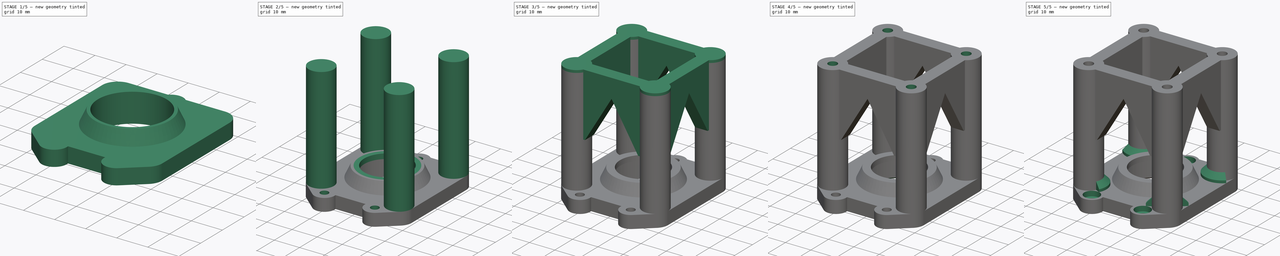
[diagram: build sequence overview — one tinted view per stage of 5, left to right]
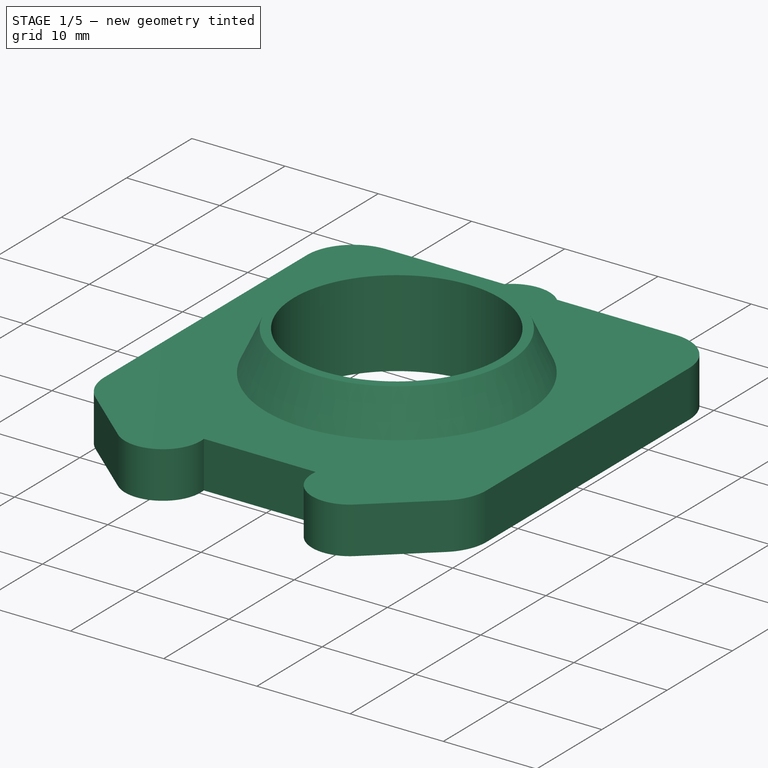
[diagram: stage 1 of 5 — iso view after this stage's code; geometry added in this stage tinted green]
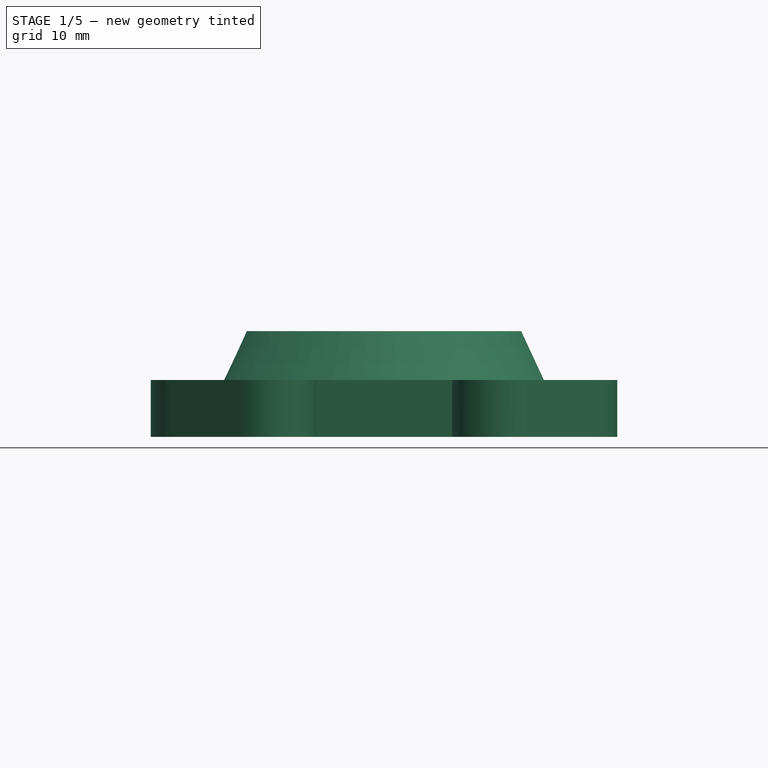
[diagram: stage 1 of 5 — front view after this stage's code; geometry added in this stage tinted green]
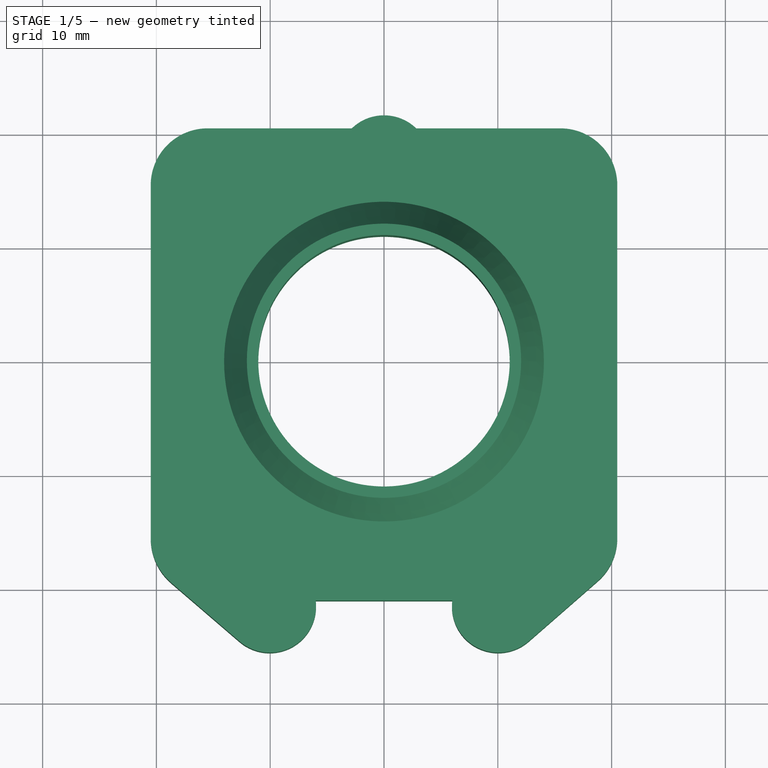
[diagram: stage 1 of 5 — top view after this stage's code; geometry added in this stage tinted green]
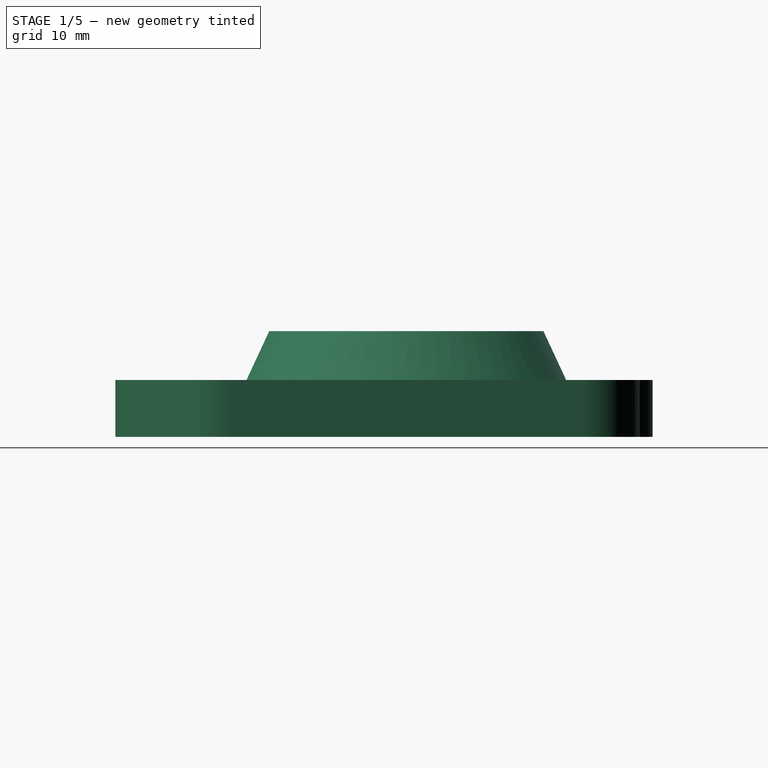
[diagram: stage 1 of 5 — right view after this stage's code; geometry added in this stage tinted green]
FCSTD DOCUMENT  (FreeCAD 0.17R13519 (Git))
Label: Halterung Lager und Schrittmotor Z-Achse
License: All rights reserved
LicenseURL: http://en.wikipedia.org/wiki/All_rights_reserved
objects: Sketcher::SketchObject×13, PartDesign::Pad×6, PartDesign::Pocket×6, PartDesign::Chamfer×2, PartDesign::Revolution×1, Part::MultiFuse×1
note: 42 computed .brp shape members not serialized (recipe doc carries the construction recipe); baked Part::Feature solids carry a one-line shape summary decoded from their .brp

FEATURE [Sketcher::SketchObject] Sketch
  MapMode = 5
  sketch-geometry (33):
    g0: LineSegment [constr] StartX=-15.5 StartY=15.5 StartZ=0 EndX=15.5 EndY=15.5 EndZ=0
    g1: LineSegment [constr] StartX=15.5 StartY=15.5 StartZ=0 EndX=15.5 EndY=-15.5 EndZ=0
    g2: LineSegment [constr] StartX=15.5 StartY=-15.5 StartZ=0 EndX=-15.5 EndY=-15.5 EndZ=0
    g3: LineSegment [constr] StartX=-15.5 StartY=-15.5 StartZ=0 EndX=-15.5 EndY=15.5 EndZ=0
    g4: ArcOfCircle CenterX=-15.5 CenterY=15.5 CenterZ=0 NormalX=0 NormalY=0 NormalZ=1 AngleXU=0 Radius=5 StartAngle=1.5708 EndAngle=3.14159
    g5: ArcOfCircle CenterX=15.5 CenterY=15.5 CenterZ=0 NormalX=0 NormalY=0 NormalZ=1 AngleXU=0 Radius=5 StartAngle=6.28319 EndAngle=7.85398
    g6: ArcOfCircle [constr] CenterX=15.5 CenterY=-15.5 CenterZ=0 NormalX=0 NormalY=0 NormalZ=1 AngleXU=0 Radius=5 StartAngle=4.71239 EndAngle=6.28319
    g7: ArcOfCircle [constr] CenterX=-15.5 CenterY=-15.5 CenterZ=0 NormalX=0 NormalY=0 NormalZ=1 AngleXU=0 Radius=5 StartAngle=3.14159 EndAngle=4.71239
    g8: LineSegment [constr] StartX=-15.5 StartY=20.5 StartZ=0 EndX=15.5 EndY=20.5 EndZ=0
    g9: LineSegment StartX=20.5 StartY=15.5 StartZ=0 EndX=20.5 EndY=-15.5 EndZ=0
    g10: LineSegment [constr] StartX=-15.5 StartY=-20.5 StartZ=0 EndX=15.5 EndY=-20.5 EndZ=0
    g11: LineSegment StartX=-20.5 StartY=-15.5 StartZ=0 EndX=-20.5 EndY=15.5 EndZ=0
    g12: LineSegment [constr] StartX=2.03516 StartY=14.05 StartZ=0 EndX=4.07032 EndY=17.575 EndZ=0
    g13: LineSegment [constr] StartX=4.07032 StartY=17.575 StartZ=0 EndX=2.03516 EndY=21.1 EndZ=0
    g14: LineSegment [constr] StartX=2.03516 StartY=21.1 StartZ=0 EndX=-2.03516 EndY=21.1 EndZ=0
    g15: LineSegment [constr] StartX=-2.03516 StartY=21.1 StartZ=0 EndX=-4.07032 EndY=17.575 EndZ=0
    g16: LineSegment [constr] StartX=-4.07032 StartY=17.575 StartZ=0 EndX=-2.03516 EndY=14.05 EndZ=0
    g17: LineSegment [constr] StartX=-2.03516 StartY=14.05 StartZ=0 EndX=2.03516 EndY=14.05 EndZ=0
    g18: Circle [constr] CenterX=0 CenterY=17.575 CenterZ=0 NormalX=0 NormalY=0 NormalZ=1 AngleXU=0 Radius=4.07032
    g19: Circle CenterX=0 CenterY=0 CenterZ=0 NormalX=0 NormalY=0 NormalZ=1 AngleXU=0 Radius=11.05
    g20: LineSegment [constr] StartX=0 StartY=14.05 StartZ=0 EndX=0 EndY=11.05 EndZ=0
    g21: ArcOfCircle CenterX=0 CenterY=17.575 CenterZ=0 NormalX=0 NormalY=0 NormalZ=1 AngleXU=0 Radius=4.07032 StartAngle=0.801811 EndAngle=2.33978
    g22: LineSegment StartX=-15.5 StartY=20.5 StartZ=0 EndX=-2.83053 EndY=20.5 EndZ=0
    g23: LineSegment StartX=15.5 StartY=20.5 StartZ=0 EndX=2.83053 EndY=20.5 EndZ=0
    g24: Circle [constr] CenterX=-10.0393 CenterY=-21.5 CenterZ=0 NormalX=0 NormalY=0 NormalZ=1 AngleXU=0 Radius=4.07032
    g25: Circle [constr] CenterX=10.0393 CenterY=-21.5 CenterZ=0 NormalX=0 NormalY=0 NormalZ=1 AngleXU=0 Radius=4.07032
    g26: ArcOfCircle CenterX=-10.0393 CenterY=-21.5 CenterZ=0 NormalX=0 NormalY=0 NormalZ=1 AngleXU=0 Radius=4.07032 StartAngle=4.00323 EndAngle=6.4068
    g27: ArcOfCircle CenterX=10.0393 CenterY=-21.5 CenterZ=0 NormalX=0 NormalY=0 NormalZ=1 AngleXU=0 Radius=4.07032 StartAngle=3.01797 EndAngle=5.42996
    g28: LineSegment StartX=-6 StartY=-20.9981 StartZ=0 EndX=6 EndY=-20.9981 EndZ=0
    g29: ArcOfCircle CenterX=-15.3055 CenterY=-15.5 CenterZ=0 NormalX=0 NormalY=0 NormalZ=1 AngleXU=0 Radius=5.19447 StartAngle=3.14159 EndAngle=4.00323
    g30: LineSegment StartX=-18.6881 StartY=-19.4422 StartZ=0 EndX=-12.6898 EndY=-24.589 EndZ=0
    g31: ArcOfCircle CenterX=15.5 CenterY=-15.5 CenterZ=0 NormalX=0 NormalY=0 NormalZ=1 AngleXU=0 Radius=5 StartAngle=5.42996 EndAngle=6.28319
    g32: LineSegment StartX=18.7878 StartY=-19.267 StartZ=0 EndX=12.7157 EndY=-24.5666 EndZ=0
  constraints (91):
    c: Coincident(g0,g1)
    c: Coincident(g1,g2)
    c: Coincident(g2,g3)
    c: Coincident(g3,g0)
    c: Horizontal(g0)
    c: Horizontal(g2)
    c: Vertical(g1)
    c: Vertical(g3)
    c: Symmetric(g1,g0,g-1)
    c: Equal(g0,g1)
    c: DistanceX(g2,g2) = 31
    c: Coincident(g4,g0)
    c: Coincident(g5,g0)
    c: Coincident(g6,g1)
    c: Coincident(g7,g2)
    c: Horizontal(g8)
    c: Vertical(g9)
    c: Horizontal(g10)
    c: Vertical(g11)
    c: Coincident(g4,g11)
    c: Coincident(g4,g8)
    c: Coincident(g5,g8)
    c: Coincident(g5,g9)
    c: Coincident(g6,g9)
    c: Coincident(g6,g10)
    c: Coincident(g7,g10)
    c: Coincident(g7,g11)
    c: Tangent(g4,g11)
    c: Tangent(g7,g11)
    c: Tangent(g5,g8)
    c: Tangent(g4,g8)
    c: Tangent(g5,g9)
    c: Tangent(g6,g9)
    c: Tangent(g6,g10)
    c: Radius(g6) = 5
    c: Coincident(g12,g13)
    c: Coincident(g13,g14)
    c: Coincident(g14,g15)
    c: Coincident(g15,g16)
    c: Coincident(g16,g17)
    c: Coincident(g17,g12)
    c: Equal(g12, g13-g17) x5
    c: PointOnObject(g12,g18)
    c: PointOnObject(g13,g18)
    c: PointOnObject(g14,g18)
    c: PointOnObject(g15,g18)
    c: PointOnObject(g16,g18)
    c: PointOnObject(g17,g18)
    c: Horizontal(g17)
    c: Distance(g13,g12) = 7.05
    c: Coincident(g19,g-1)
    c: Radius(g19) = 11.05
    c: PointOnObject(g20,g17)
    c: PointOnObject(g20,g19)
    c: Symmetric(g16,g12,g20)
    c: DistanceY(g20,g20) = 3
    c: PointOnObject(g20,g-2)
    c: Coincident(g21,g18)
    c: Coincident(g22,g21)
    c: Horizontal(g22)
    c: Coincident(g23,g21)
    c: Horizontal(g23)
    c: Equal(g22,g23)
    c: Coincident(g4,g22)
    c: Coincident(g23,g5)
    c: Equal(g24,g25)
    c: Equal(g25,g18)
    c: Coincident(g26,g24)
    c: Coincident(g27,g25)
    c: Equal(g27,g26)
    c: Equal(g26,g21)
    c: Horizontal(g28)
    c: Coincident(g27,g28)
    c: Coincident(g26,g28)
    c: PointOnObject(g29,g2)
    c: Coincident(g26,g30)
    c: Coincident(g29,g30)
    c: Tangent(g30,g26)
    c: Tangent(g29,g30)
    c: Coincident(g7,g29)
    c: Coincident(g31,g1)
    c: Coincident(g27,g32)
    c: Coincident(g31,g32)
    c: Tangent(g32,g31)
    c: Tangent(g32,g27)
    c: Coincident(g6,g31)
    c: DistanceX(g26,g27) = 12
    c: Symmetric(g26,g27,g-2)
    c: Equal(g18,g21)
    c: DistanceY(g6,g25) = -1
    c: Symmetric(g25,g24,g-2)
FEATURE [PartDesign::Pad] Pad  label="Grundkoerper"
  Length = 5
  Length2 = 100
  Profile = -> Sketch
  Type = 0
FEATURE [Sketcher::SketchObject] Sketch001
  MapMode = 5
  Placement = pos=(0,0,0) rot=(1,0,0;1.5708rad)
  sketch-geometry (4):
    g0: LineSegment StartX=11.05 StartY=5 StartZ=0 EndX=14.05 EndY=5 EndZ=0
    g1: LineSegment StartX=14.05 StartY=5 StartZ=0 EndX=12.05 EndY=9.3 EndZ=0
    g2: LineSegment StartX=12.05 StartY=9.3 StartZ=0 EndX=11.05 EndY=9.3 EndZ=0
    g3: LineSegment StartX=11.05 StartY=9.3 StartZ=0 EndX=11.05 EndY=5 EndZ=0
  constraints (12):
    c: Horizontal(g0)
    c: Coincident(g0,g1)
    c: Coincident(g1,g2)
    c: Horizontal(g2)
    c: Coincident(g2,g3)
    c: Vertical(g3)
    c: Coincident(g0,g3)
    c: DistanceY(g3,g3) = 4.3
    c: DistanceX(g2,g2) = 1
    c: DistanceX(g0,g0) = 3
    c: DistanceX(g0) = 11.05
    c: DistanceY(g0) = 5
FEATURE [PartDesign::Revolution] Revolution  label="Kragen Lager"
  Angle = 360
  Axis = (0,0,1)
  Base = (0,0,0)
  Placement = pos=(0,0,0) rot=(1,0,0;1.5708rad)
  Profile = -> Sketch001
  ReferenceAxis = -> Sketch001 [V_Axis]
  Reversed = true
FEATURE [Part::MultiFuse] Fusion
  Shapes = -> [Revolution,Pad]
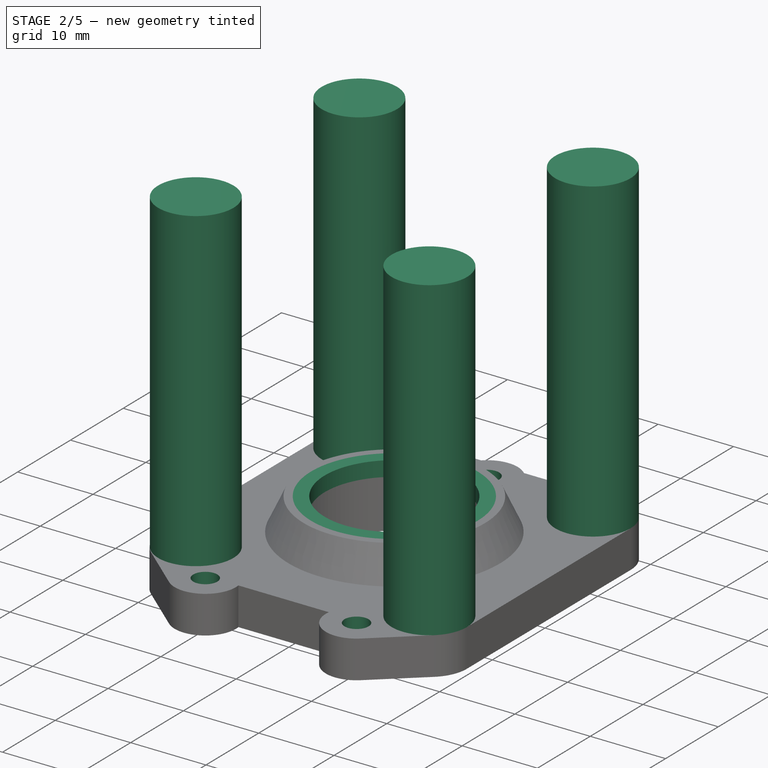
[diagram: stage 2 of 5 — iso view after this stage's code; geometry added in this stage tinted green]
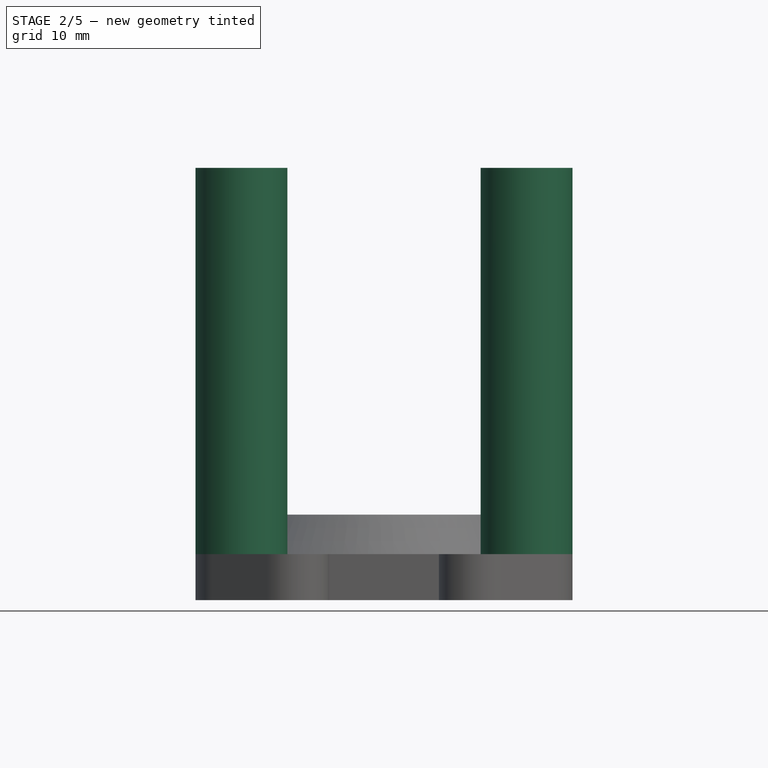
[diagram: stage 2 of 5 — front view after this stage's code; geometry added in this stage tinted green]
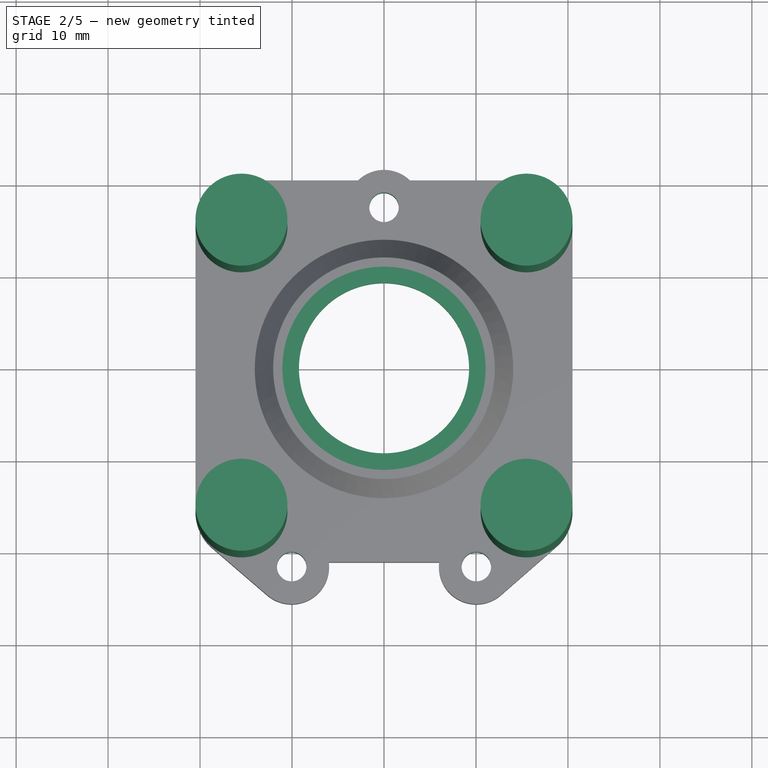
[diagram: stage 2 of 5 — top view after this stage's code; geometry added in this stage tinted green]
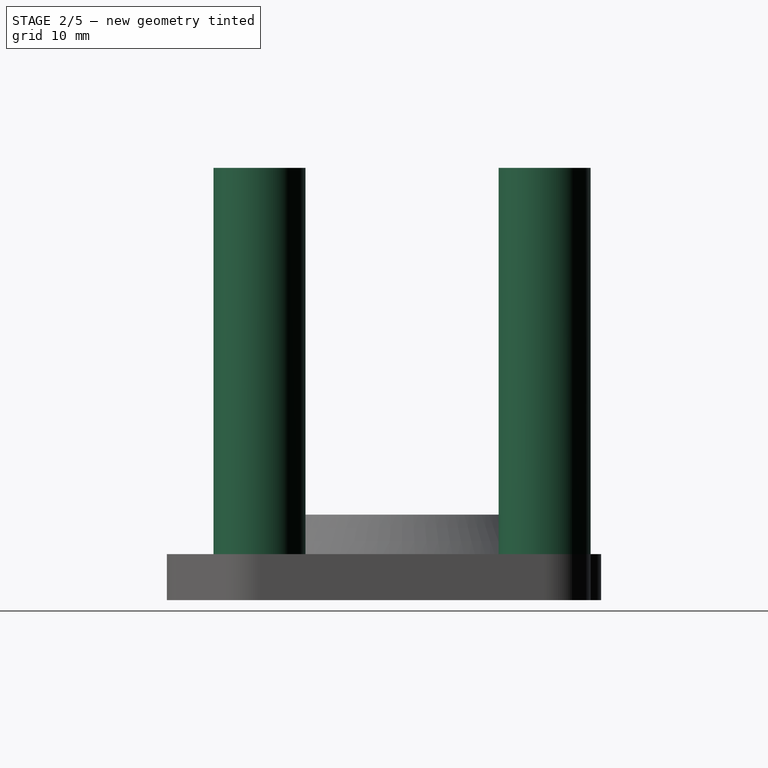
[diagram: stage 2 of 5 — right view after this stage's code; geometry added in this stage tinted green]
FEATURE [Sketcher::SketchObject] Sketch002
  MapMode = 5
  Placement = pos=(0,0,9.3) rot=(0,0,1;0rad)
  Support = -> [Fusion]
  sketch-geometry (2):
    g0: Circle CenterX=0 CenterY=0 CenterZ=0 NormalX=0 NormalY=0 NormalZ=1 AngleXU=0 Radius=11.05
    g1: Circle CenterX=0 CenterY=0 CenterZ=0 NormalX=0 NormalY=0 NormalZ=1 AngleXU=0 Radius=9.25
  constraints (4):
    c: Coincident(g0,g-1)
    c: Coincident(g1,g-1)
    c: Radius(g0) = 11.05
    c: Radius(g1) = 9.25
FEATURE [PartDesign::Pad] Pad001  label="Haltekragen Lager"
  Length = 2
  Length2 = 100
  Profile = -> Sketch002
  Reversed = true
  Type = 0
FEATURE [Sketcher::SketchObject] Sketch003
  ExternalGeometry = -> [Pad001]
  MapMode = 5
  Placement = pos=(0,0,5) rot=(0,0,1;0rad)
  Support = -> [Pad001]
  sketch-geometry (3):
    g0: Circle CenterX=0 CenterY=17.575 CenterZ=0 NormalX=0 NormalY=0 NormalZ=1 AngleXU=0 Radius=1.6
    g1: Circle CenterX=-10.0393 CenterY=-21.5 CenterZ=0 NormalX=0 NormalY=0 NormalZ=1 AngleXU=0 Radius=1.6
    g2: Circle CenterX=10.0393 CenterY=-21.5 CenterZ=0 NormalX=0 NormalY=0 NormalZ=1 AngleXU=0 Radius=1.6
  constraints (6):
    c: Coincident(g0,g-3)
    c: Symmetric(g1,g2,g-2)
    c: Coincident(g2,g-4)
    c: Radius(g2) = 1.6
    c: Equal(g2,g1)
    c: Equal(g2,g0)
FEATURE [PartDesign::Pocket] Pocket  label="Bohrungen Befestigungsschrauben"
  Length = 5
  Length2 = 100
  Profile = -> Sketch003
  Type = 1
FEATURE [Sketcher::SketchObject] Sketch004
  ExternalGeometry = -> [Pocket]
  MapMode = 5
  Placement = pos=(0,0,5) rot=(0,0,1;0rad)
  Support = -> [Pocket]
  sketch-geometry (8):
    g0: LineSegment [constr] StartX=-15.5 StartY=15.5 StartZ=0 EndX=15.5 EndY=15.5 EndZ=0
    g1: LineSegment [constr] StartX=15.5 StartY=15.5 StartZ=0 EndX=15.5 EndY=-15.5 EndZ=0
    g2: LineSegment [constr] StartX=15.5 StartY=-15.5 StartZ=0 EndX=-15.5 EndY=-15.5 EndZ=0
    g3: LineSegment [constr] StartX=-15.5 StartY=-15.5 StartZ=0 EndX=-15.5 EndY=15.5 EndZ=0
    g4: Circle CenterX=-15.5 CenterY=15.5 CenterZ=0 NormalX=0 NormalY=0 NormalZ=1 AngleXU=0 Radius=5
    g5: Circle CenterX=15.5 CenterY=15.5 CenterZ=0 NormalX=0 NormalY=0 NormalZ=1 AngleXU=0 Radius=5
    g6: Circle CenterX=15.5 CenterY=-15.5 CenterZ=0 NormalX=0 NormalY=0 NormalZ=1 AngleXU=0 Radius=5
    g7: Circle CenterX=-15.5 CenterY=-15.5 CenterZ=0 NormalX=0 NormalY=0 NormalZ=1 AngleXU=0 Radius=5
  constraints (19):
    c: Coincident(g0,g1)
    c: Coincident(g1,g2)
    c: Coincident(g2,g3)
    c: Coincident(g3,g0)
    c: Horizontal(g0)
    c: Horizontal(g2)
    c: Vertical(g1)
    c: Vertical(g3)
    c: Symmetric(g0,g1,g-1)
    c: Equal(g0,g1)
    c: Coincident(g4,g0)
    c: Equal(g4,g-3)
    c: PointOnObject(g-3,g4)
    c: Coincident(g5,g0)
    c: Coincident(g6,g1)
    c: Coincident(g7,g2)
    c: Equal(g4,g5)
    c: Equal(g5,g6)
    c: Equal(g6,g7)
FEATURE [PartDesign::Pad] Pad002  label="Stand off Schrittmotor"
  Length = 42
  Length2 = 100
  Profile = -> Sketch004
  Type = 0
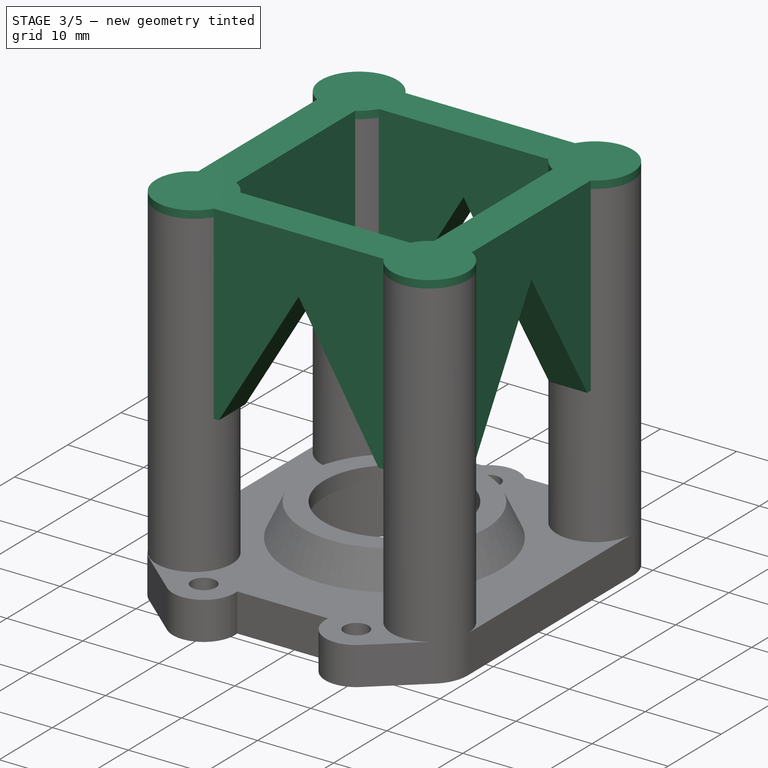
[diagram: stage 3 of 5 — iso view after this stage's code; geometry added in this stage tinted green]
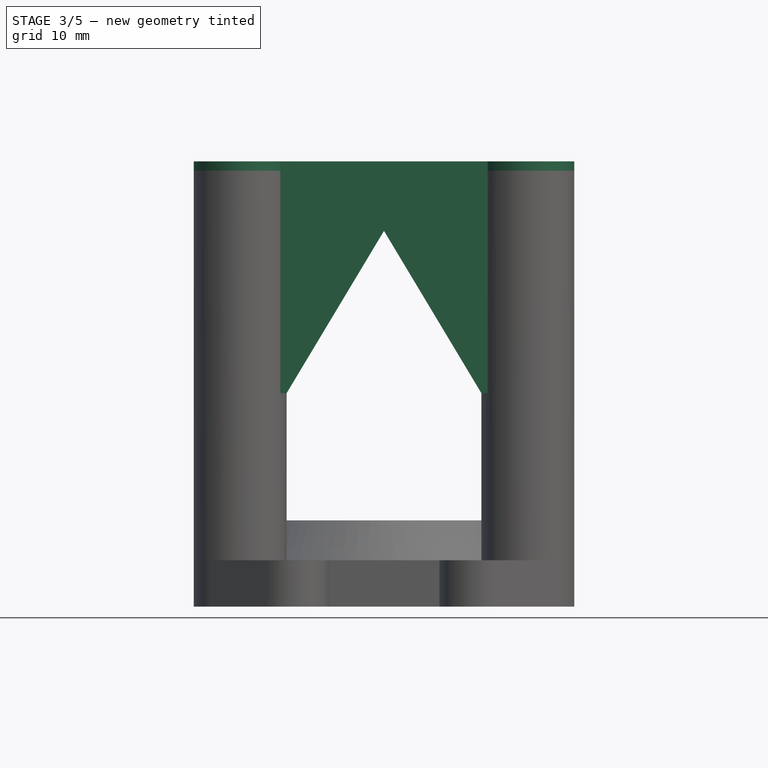
[diagram: stage 3 of 5 — front view after this stage's code; geometry added in this stage tinted green]
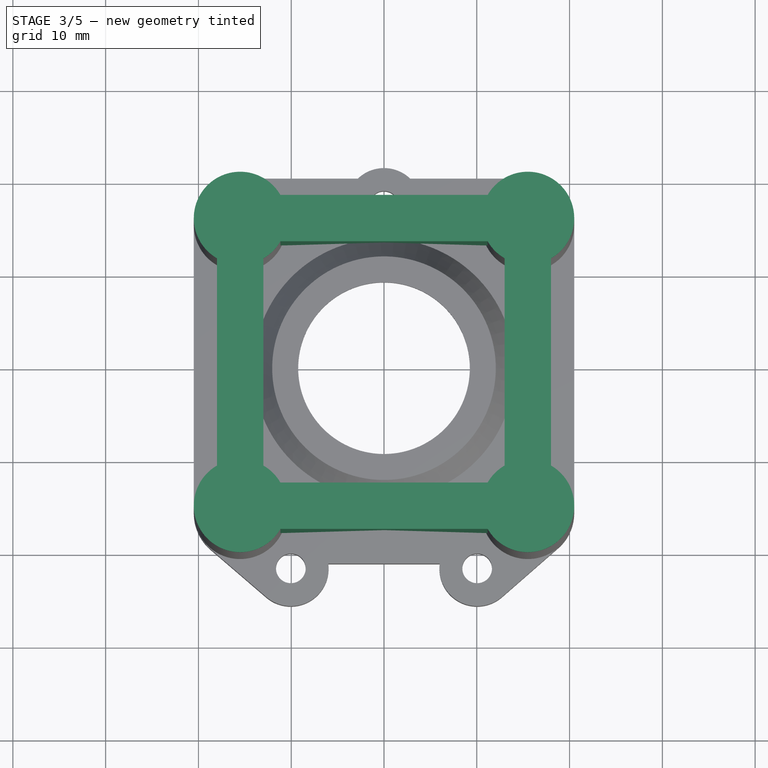
[diagram: stage 3 of 5 — top view after this stage's code; geometry added in this stage tinted green]
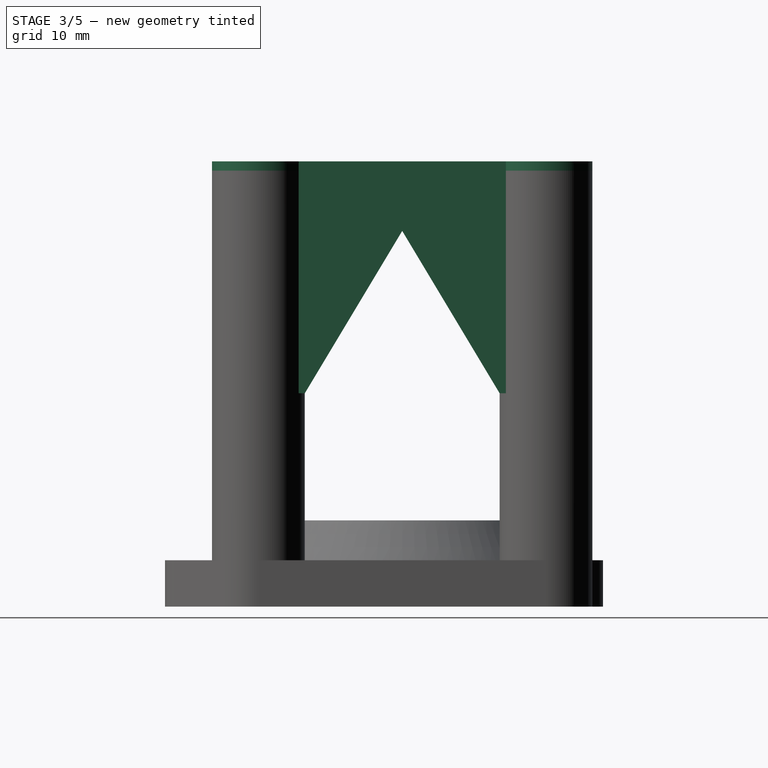
[diagram: stage 3 of 5 — right view after this stage's code; geometry added in this stage tinted green]
FEATURE [Sketcher::SketchObject] Sketch005
  ExternalGeometry = -> [Pad002]
  MapMode = 5
  Placement = pos=(0,0,47) rot=(0,0,1;0rad)
  Support = -> [Pad002]
  sketch-geometry (21):
    g0: LineSegment [constr] StartX=-15.5 StartY=15.5 StartZ=0 EndX=15.5 EndY=15.5 EndZ=0
    g1: LineSegment [constr] StartX=15.5 StartY=15.5 StartZ=0 EndX=15.5 EndY=-15.5 EndZ=0
    g2: LineSegment [constr] StartX=15.5 StartY=-15.5 StartZ=0 EndX=-15.5 EndY=-15.5 EndZ=0
    g3: LineSegment [constr] StartX=-15.5 StartY=-15.5 StartZ=0 EndX=-15.5 EndY=15.5 EndZ=0
    g4: ArcOfCircle CenterX=-15.5 CenterY=15.5 CenterZ=0 NormalX=0 NormalY=0 NormalZ=1 AngleXU=0 Radius=5 StartAngle=0.523599 EndAngle=4.18879
    g5: ArcOfCircle CenterX=-15.5 CenterY=15.5 CenterZ=0 NormalX=0 NormalY=0 NormalZ=1 AngleXU=0 Radius=5 StartAngle=5.23599 EndAngle=5.75959
    g6: ArcOfCircle CenterX=-15.5 CenterY=-15.5 CenterZ=0 NormalX=0 NormalY=0 NormalZ=1 AngleXU=0 Radius=5 StartAngle=2.0944 EndAngle=5.75959
    g7: ArcOfCircle CenterX=-15.5 CenterY=-15.5 CenterZ=0 NormalX=0 NormalY=0 NormalZ=1 AngleXU=0 Radius=5 StartAngle=0.523599 EndAngle=1.0472
    g8: ArcOfCircle CenterX=15.5 CenterY=-15.5 CenterZ=0 NormalX=0 NormalY=0 NormalZ=1 AngleXU=0 Radius=5 StartAngle=2.0944 EndAngle=2.61799
    g9: ArcOfCircle CenterX=15.5 CenterY=-15.5 CenterZ=0 NormalX=0 NormalY=0 NormalZ=1 AngleXU=0 Radius=5 StartAngle=3.66519 EndAngle=7.33038
    g10: ArcOfCircle CenterX=15.5 CenterY=15.5 CenterZ=0 NormalX=0 NormalY=0 NormalZ=1 AngleXU=0 Radius=5 StartAngle=3.66519 EndAngle=4.18879
    g11: ArcOfCircle CenterX=15.5 CenterY=15.5 CenterZ=0 NormalX=0 NormalY=0 NormalZ=1 AngleXU=0 Radius=5 StartAngle=5.23599 EndAngle=8.90118
    g12: LineSegment StartX=-11.1699 StartY=18 StartZ=0 EndX=11.1699 EndY=18 EndZ=0
    g13: LineSegment StartX=-11.1699 StartY=13 StartZ=0 EndX=11.1699 EndY=13 EndZ=0
    g14: LineSegment StartX=-18 StartY=11.1699 StartZ=0 EndX=-18 EndY=-11.1699 EndZ=0
    g15: LineSegment StartX=-13 StartY=11.1699 StartZ=0 EndX=-13 EndY=-11.1699 EndZ=0
    g16: LineSegment StartX=-11.1699 StartY=-13 StartZ=0 EndX=11.1699 EndY=-13 EndZ=0
    g17: LineSegment StartX=-11.1699 StartY=-18 StartZ=0 EndX=11.1699 EndY=-18 EndZ=0
    g18: LineSegment StartX=13 StartY=-11.1699 StartZ=0 EndX=13 EndY=11.1699 EndZ=0
    g19: LineSegment StartX=18 StartY=11.1699 StartZ=0 EndX=18 EndY=-11.1699 EndZ=0
    g20: LineSegment [constr] StartX=-18 StartY=0 StartZ=0 EndX=-13 EndY=0 EndZ=0
  constraints (62):
    c: Coincident(g0,g1)
    c: Coincident(g1,g2)
    c: Coincident(g2,g3)
    c: Coincident(g3,g0)
    c: Horizontal(g0)
    c: Horizontal(g2)
    c: Vertical(g1)
    c: Vertical(g3)
    c: Symmetric(g1,g0,g-1)
    c: DistanceX(g2,g2) = 31
    c: Equal(g2,g1)
    c: Coincident(g4,g0)
    c: Coincident(g5,g0)
    c: Coincident(g6,g2)
    c: Coincident(g7,g2)
    c: Coincident(g8,g1)
    c: Coincident(g9,g1)
    c: Coincident(g10,g0)
    c: Coincident(g11,g0)
    c: Horizontal(g12)
    c: Horizontal(g13)
    c: Vertical(g14)
    c: Vertical(g15)
    c: Horizontal(g16)
    c: Horizontal(g17)
    c: Vertical(g18)
    c: Vertical(g19)
    c: Coincident(g5,g15)
    c: Coincident(g5,g13)
    c: Coincident(g4,g12)
    c: Coincident(g4,g14)
    c: Coincident(g6,g14)
    c: Coincident(g7,g15)
    c: Coincident(g7,g16)
    c: Coincident(g6,g17)
    c: Coincident(g9,g17)
    c: Coincident(g8,g16)
    c: Coincident(g8,g18)
    c: Coincident(g9,g19)
    c: Coincident(g10,g18)
    c: Coincident(g11,g19)
    c: Coincident(g10,g13)
    c: Coincident(g11,g12)
    c: Equal(g5,g4)
    c: Equal(g4,g6)
    c: Equal(g6,g7)
    c: Equal(g7,g8)
    c: Equal(g8,g9)
    c: Equal(g9,g10)
    c: Equal(g10,g11)
    c: Equal(g14,g17)
    c: Equal(g17,g19)
    c: Equal(g19,g12)
    c: Equal(g16,g15)
    c: Equal(g15,g13)
    c: Equal(g13,g18)
    c: Equal(g-3,g4)
    c: PointOnObject(g20,g14)
    c: PointOnObject(g20,g15)
    c: Symmetric(g20,g20,g3)
    c: DistanceX(g20,g20) = 5
    c: PointOnObject(g20,g-1)
FEATURE [PartDesign::Pad] Pad003  label="Rahmen Schrittmotor"
  Length = 1
  Length2 = 100
  Profile = -> Sketch005
  Type = 0
FEATURE [Sketcher::SketchObject] Sketch006
  MapMode = 5
  Placement = pos=(0,0,47) rot=(1,0,0;3.14159rad)
  Support = -> [Pad003]
  sketch-geometry (20):
    g0: LineSegment [constr] StartX=-15.5 StartY=15.5 StartZ=0 EndX=15.5 EndY=15.5 EndZ=0
    g1: LineSegment [constr] StartX=15.5 StartY=15.5 StartZ=0 EndX=15.5 EndY=-15.5 EndZ=0
    g2: LineSegment [constr] StartX=15.5 StartY=-15.5 StartZ=0 EndX=-15.5 EndY=-15.5 EndZ=0
    g3: LineSegment [constr] StartX=-15.5 StartY=-15.5 StartZ=0 EndX=-15.5 EndY=15.5 EndZ=0
    g4: ArcOfCircle CenterX=-15.5 CenterY=15.5 CenterZ=0 NormalX=0 NormalY=0 NormalZ=1 AngleXU=0 Radius=5 StartAngle=4.18879 EndAngle=5.23599
    g5: ArcOfCircle CenterX=-15.5 CenterY=-15.5 CenterZ=0 NormalX=0 NormalY=0 NormalZ=1 AngleXU=0 Radius=5 StartAngle=1.0472 EndAngle=2.0944
    g6: ArcOfCircle CenterX=-15.5 CenterY=15.5 CenterZ=0 NormalX=0 NormalY=0 NormalZ=1 AngleXU=0 Radius=5 StartAngle=5.75959 EndAngle=6.80678
    g7: ArcOfCircle CenterX=15.5 CenterY=15.5 CenterZ=0 NormalX=0 NormalY=0 NormalZ=1 AngleXU=0 Radius=5 StartAngle=2.61799 EndAngle=3.66519
    g8: ArcOfCircle CenterX=15.5 CenterY=15.5 CenterZ=0 NormalX=0 NormalY=0 NormalZ=1 AngleXU=0 Radius=5 StartAngle=4.18879 EndAngle=5.23599
    g9: ArcOfCircle CenterX=15.5 CenterY=-15.5 CenterZ=0 NormalX=0 NormalY=0 NormalZ=1 AngleXU=0 Radius=5 StartAngle=1.0472 EndAngle=2.0944
    g10: ArcOfCircle CenterX=15.5 CenterY=-15.5 CenterZ=0 NormalX=0 NormalY=0 NormalZ=1 AngleXU=0 Radius=5 StartAngle=2.61799 EndAngle=3.66519
    g11: ArcOfCircle CenterX=-15.5 CenterY=-15.5 CenterZ=0 NormalX=0 NormalY=0 NormalZ=1 AngleXU=0 Radius=5 StartAngle=5.75959 EndAngle=6.80678
    g12: LineSegment StartX=-18 StartY=11.1699 StartZ=0 EndX=-18 EndY=-11.1699 EndZ=0
    g13: LineSegment StartX=-13 StartY=11.1699 StartZ=0 EndX=-13 EndY=-11.1699 EndZ=0
    g14: LineSegment StartX=-11.1699 StartY=13 StartZ=0 EndX=11.1699 EndY=13 EndZ=0
    g15: LineSegment StartX=-11.1699 StartY=18 StartZ=0 EndX=11.1699 EndY=18 EndZ=0
    g16: LineSegment StartX=13 StartY=11.1699 StartZ=0 EndX=13 EndY=-11.1699 EndZ=0
    g17: LineSegment StartX=18 StartY=11.1699 StartZ=0 EndX=18 EndY=-11.1699 EndZ=0
    g18: LineSegment StartX=11.1699 StartY=-13 StartZ=0 EndX=-11.1699 EndY=-13 EndZ=0
    g19: LineSegment StartX=-11.1699 StartY=-18 StartZ=0 EndX=11.1699 EndY=-18 EndZ=0
  constraints (59):
    c: Coincident(g0,g1)
    c: Coincident(g1,g2)
    c: Coincident(g2,g3)
    c: Coincident(g3,g0)
    c: Horizontal(g0)
    c: Horizontal(g2)
    c: Vertical(g1)
    c: Vertical(g3)
    c: Equal(g0,g3)
    c: Symmetric(g0,g1,g-1)
    c: DistanceX(g2,g2) = 31
    c: Coincident(g4,g0)
    c: Coincident(g5,g2)
    c: Coincident(g6,g0)
    c: Coincident(g7,g0)
    c: Coincident(g8,g0)
    c: Coincident(g9,g1)
    c: Coincident(g10,g1)
    c: Coincident(g11,g2)
    c: Vertical(g12)
    c: Vertical(g13)
    c: Horizontal(g14)
    c: Vertical(g16)
    c: Vertical(g17)
    c: Horizontal(g18)
    c: Horizontal(g19)
    c: Horizontal(g15)
    c: Coincident(g4,g13)
    c: Coincident(g4,g12)
    c: Coincident(g5,g12)
    c: Coincident(g6,g14)
    c: Coincident(g6,g15)
    c: Coincident(g7,g15)
    c: Coincident(g7,g14)
    c: Coincident(g8,g17)
    c: Coincident(g8,g16)
    c: Coincident(g9,g16)
    c: Coincident(g9,g17)
    c: Coincident(g10,g18)
    c: Coincident(g19,g10)
    c: Coincident(g5,g13)
    c: Coincident(g11,g19)
    c: Coincident(g11,g18)
    c: Equal(g11,g10)
    c: Equal(g10,g9)
    c: Equal(g9,g8)
    c: Equal(g8,g7)
    c: Equal(g7,g6)
    c: Equal(g6,g4)
    c: Equal(g4,g5)
    c: Equal(g13,g14)
    c: Equal(g14,g16)
    c: Equal(g16,g18)
    c: Equal(g19,g12)
    c: Equal(g12,g15)
    c: Equal(g15,g17)
    c: Symmetric(g4,g4,g3)
    c: DistanceX(g4,g4) = 5
    c: Radius(g9) = 5
FEATURE [PartDesign::Pad] Pad004  label="Versteifung"
  Length = 24
  Length2 = 100
  Profile = -> Sketch006
  Type = 0
FEATURE [Sketcher::SketchObject] Sketch007
  ExternalGeometry = -> [Pad004]
  MapMode = 5
  Placement = pos=(18,0,0) rot=(0.57735,0.57735,0.57735;2.0944rad)
  Support = -> [Pad004]
  sketch-geometry (3):
    g0: LineSegment StartX=-10.5 StartY=23 StartZ=0 EndX=0 EndY=40.5 EndZ=0
    g1: LineSegment StartX=0 StartY=40.5 StartZ=0 EndX=10.5 EndY=23 EndZ=0
    g2: LineSegment StartX=10.5 StartY=23 StartZ=0 EndX=-10.5 EndY=23 EndZ=0
  constraints (9):
    c: PointOnObject(g0,g-2)
    c: Coincident(g0,g1)
    c: Coincident(g1,g2)
    c: Coincident(g2,g0)
    c: Horizontal(g2)
    c: Symmetric(g0,g1,g-2)
    c: DistanceY(g0,g-3) = 7.5
    c: DistanceX(g2,g2) = 21
    c: PointOnObject(g0,g-4)
FEATURE [PartDesign::Pocket] Pocket001  label="Ausschnitt Versteifung 1"
  Length = 5
  Length2 = 100
  Profile = -> Sketch007
  Type = 1
FEATURE [Sketcher::SketchObject] Sketch008
  ExternalGeometry = -> [Pocket001]
  MapMode = 5
  Placement = pos=(0,18,0) rot=(0,0.707107,0.707107;3.14159rad)
  Support = -> [Pocket001]
  sketch-geometry (3):
    g0: LineSegment StartX=-10.5 StartY=23 StartZ=0 EndX=0 EndY=40.5 EndZ=0
    g1: LineSegment StartX=0 StartY=40.5 StartZ=0 EndX=10.5 EndY=23 EndZ=0
    g2: LineSegment StartX=10.5 StartY=23 StartZ=0 EndX=-10.5 EndY=23 EndZ=0
  constraints (8):
    c: PointOnObject(g0,g-2)
    c: Coincident(g0,g1)
    c: Coincident(g1,g2)
    c: Coincident(g2,g0)
    c: Symmetric(g0,g1,g-2)
    c: DistanceX(g2,g2) = 21
    c: PointOnObject(g0,g-4)
    c: DistanceY(g0,g-3) = 7.5
FEATURE [PartDesign::Pocket] Pocket002  label="Ausschnitt Versteifung 2"
  Length = 5
  Length2 = 100
  Profile = -> Sketch008
  Type = 1
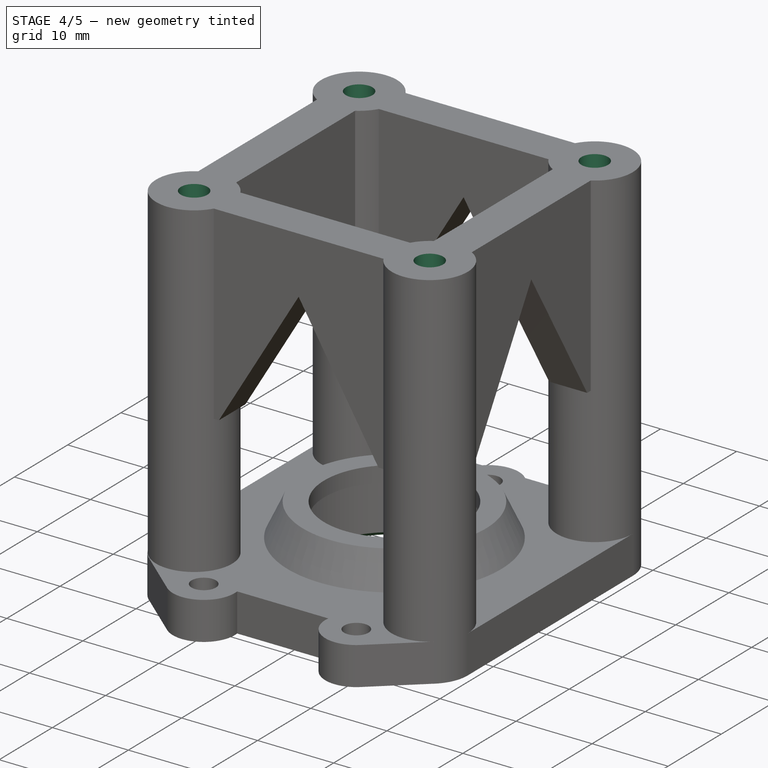
[diagram: stage 4 of 5 — iso view after this stage's code; geometry added in this stage tinted green]
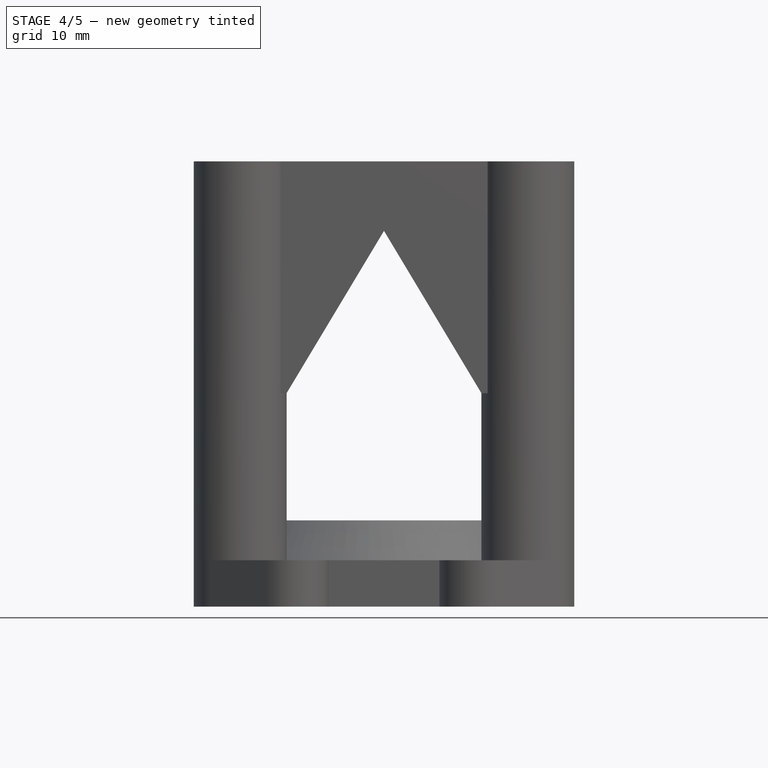
[diagram: stage 4 of 5 — front view after this stage's code; geometry added in this stage tinted green]
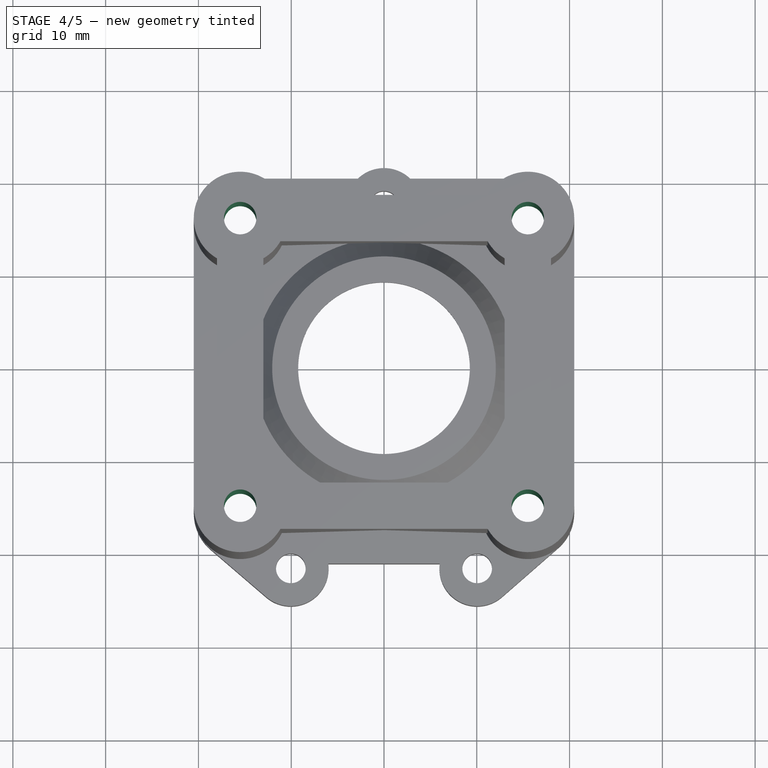
[diagram: stage 4 of 5 — top view after this stage's code; geometry added in this stage tinted green]
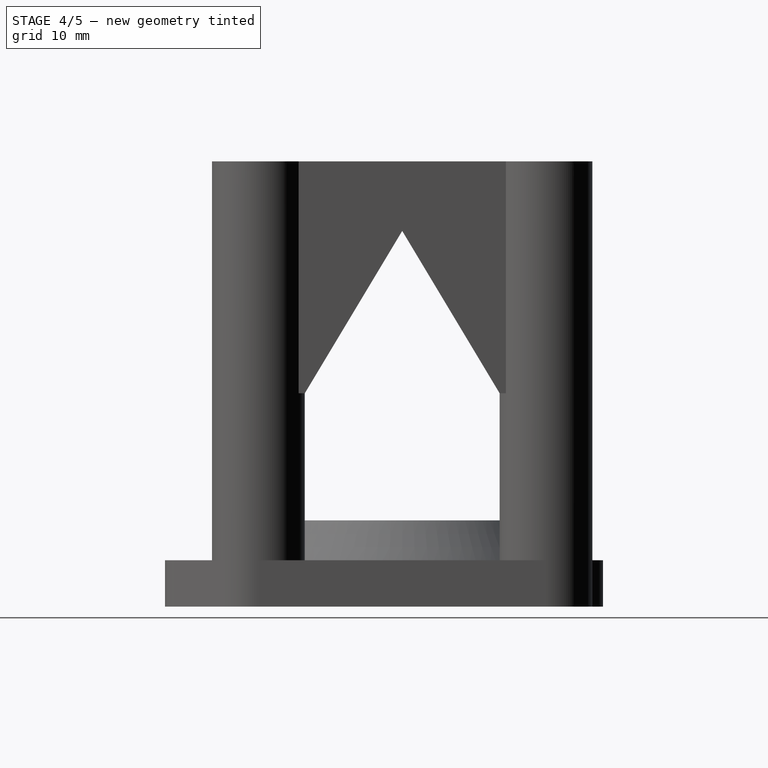
[diagram: stage 4 of 5 — right view after this stage's code; geometry added in this stage tinted green]
FEATURE [Sketcher::SketchObject] Sketch009
  MapMode = 5
  Placement = pos=(0,0,0) rot=(1,0,0;3.14159rad)
  Support = -> [Pocket002]
  sketch-geometry (8):
    g0: LineSegment [constr] StartX=-15.5 StartY=15.5 StartZ=0 EndX=15.5 EndY=15.5 EndZ=0
    g1: LineSegment [constr] StartX=15.5 StartY=15.5 StartZ=0 EndX=15.5 EndY=-15.5 EndZ=0
    g2: LineSegment [constr] StartX=15.5 StartY=-15.5 StartZ=0 EndX=-15.5 EndY=-15.5 EndZ=0
    g3: LineSegment [constr] StartX=-15.5 StartY=-15.5 StartZ=0 EndX=-15.5 EndY=15.5 EndZ=0
    g4: Circle CenterX=-15.5 CenterY=15.5 CenterZ=0 NormalX=0 NormalY=0 NormalZ=1 AngleXU=0 Radius=1.75
    g5: Circle CenterX=15.5 CenterY=15.5 CenterZ=0 NormalX=0 NormalY=0 NormalZ=1 AngleXU=0 Radius=1.75
    g6: Circle CenterX=-15.5 CenterY=-15.5 CenterZ=0 NormalX=0 NormalY=0 NormalZ=1 AngleXU=0 Radius=1.75
    g7: Circle CenterX=15.5 CenterY=-15.5 CenterZ=0 NormalX=0 NormalY=0 NormalZ=1 AngleXU=0 Radius=1.75
  constraints (19):
    c: Coincident(g0,g1)
    c: Coincident(g1,g2)
    c: Coincident(g2,g3)
    c: Coincident(g3,g0)
    c: Horizontal(g0)
    c: Horizontal(g2)
    c: Vertical(g1)
    c: Vertical(g3)
    c: Symmetric(g0,g1,g-1)
    c: Equal(g0,g1)
    c: DistanceX(g2,g2) = 31
    c: Coincident(g4,g0)
    c: Coincident(g5,g0)
    c: Coincident(g6,g2)
    c: Coincident(g7,g1)
    c: Radius(g6) = 1.75
    c: Equal(g6,g7)
    c: Equal(g6,g4)
    c: Equal(g6,g5)
FEATURE [PartDesign::Pocket] Pocket003  label="Bohrungen Befestigungsschrauben Schrittmotor"
  Length = 5
  Length2 = 100
  Profile = -> Sketch009
  Type = 1
FEATURE [Sketcher::SketchObject] Sketch010
  MapMode = 5
  Placement = pos=(0,0,0) rot=(1,0,0;3.14159rad)
  Support = -> [Pocket003]
  sketch-geometry (8):
    g0: LineSegment [constr] StartX=-15.5 StartY=15.5 StartZ=0 EndX=15.5 EndY=15.5 EndZ=0
    g1: LineSegment [constr] StartX=15.5 StartY=15.5 StartZ=0 EndX=15.5 EndY=-15.5 EndZ=0
    g2: LineSegment [constr] StartX=15.5 StartY=-15.5 StartZ=0 EndX=-15.5 EndY=-15.5 EndZ=0
    g3: LineSegment [constr] StartX=-15.5 StartY=-15.5 StartZ=0 EndX=-15.5 EndY=15.5 EndZ=0
    g4: Circle CenterX=-15.5 CenterY=15.5 CenterZ=0 NormalX=0 NormalY=0 NormalZ=1 AngleXU=0 Radius=3.25
    g5: Circle CenterX=15.5 CenterY=15.5 CenterZ=0 NormalX=0 NormalY=0 NormalZ=1 AngleXU=0 Radius=3.25
    g6: Circle CenterX=15.5 CenterY=-15.5 CenterZ=0 NormalX=0 NormalY=0 NormalZ=1 AngleXU=0 Radius=3.25
    g7: Circle CenterX=-15.5 CenterY=-15.5 CenterZ=0 NormalX=0 NormalY=0 NormalZ=1 AngleXU=0 Radius=3.25
  constraints (19):
    c: Coincident(g0,g1)
    c: Coincident(g1,g2)
    c: Coincident(g2,g3)
    c: Coincident(g3,g0)
    c: Horizontal(g0)
    c: Horizontal(g2)
    c: Vertical(g1)
    c: Vertical(g3)
    c: Symmetric(g1,g0,g-1)
    c: Equal(g0,g1)
    c: Coincident(g4,g0)
    c: Coincident(g5,g0)
    c: Coincident(g6,g1)
    c: Coincident(g7,g2)
    c: Radius(g7) = 3.25
    c: Equal(g7,g6)
    c: Equal(g7,g5)
    c: Equal(g7,g4)
    c: DistanceX(g2,g2) = 31
FEATURE [PartDesign::Pocket] Pocket004  label="Freistellung Befestigungsschrauben Schrittmotor"
  Length = 21
  Length2 = 100
  Profile = -> Sketch010
  Type = 0
FEATURE [PartDesign::Chamfer] Chamfer
  Base = -> Pocket004 [Edge11]
  Size = 0.5
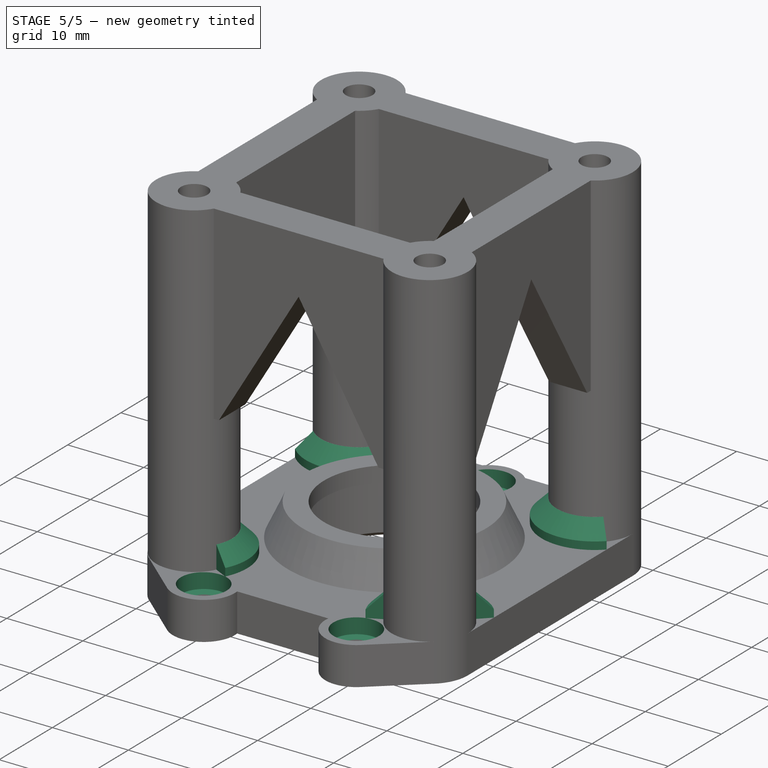
[diagram: stage 5 of 5 — iso view after this stage's code; geometry added in this stage tinted green]
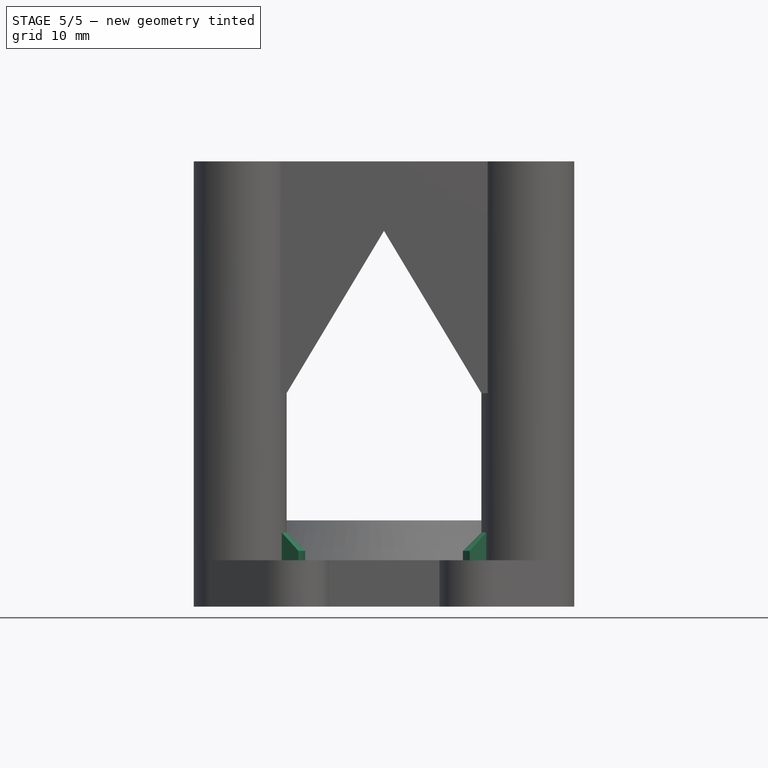
[diagram: stage 5 of 5 — front view after this stage's code; geometry added in this stage tinted green]
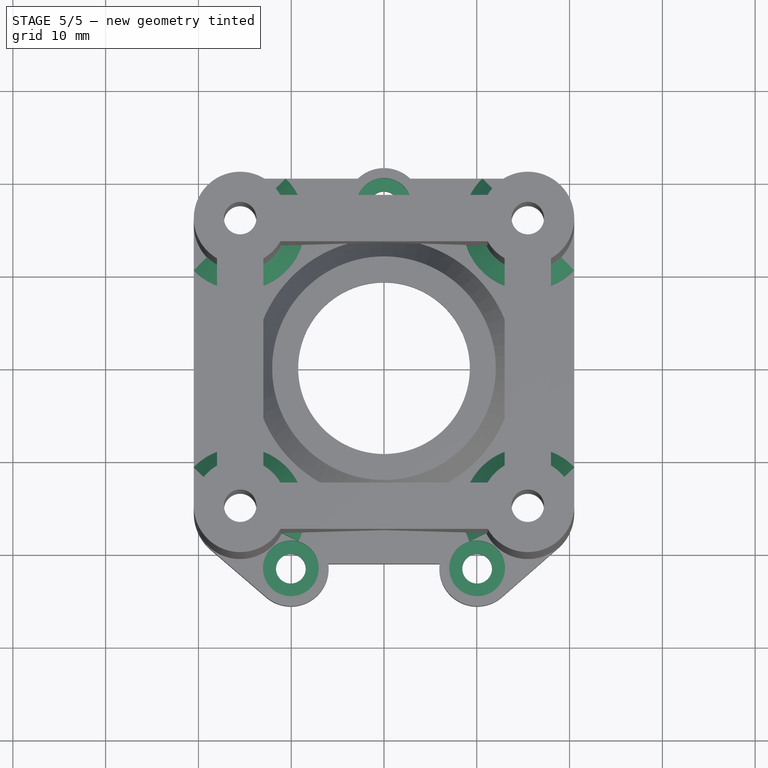
[diagram: stage 5 of 5 — top view after this stage's code; geometry added in this stage tinted green]
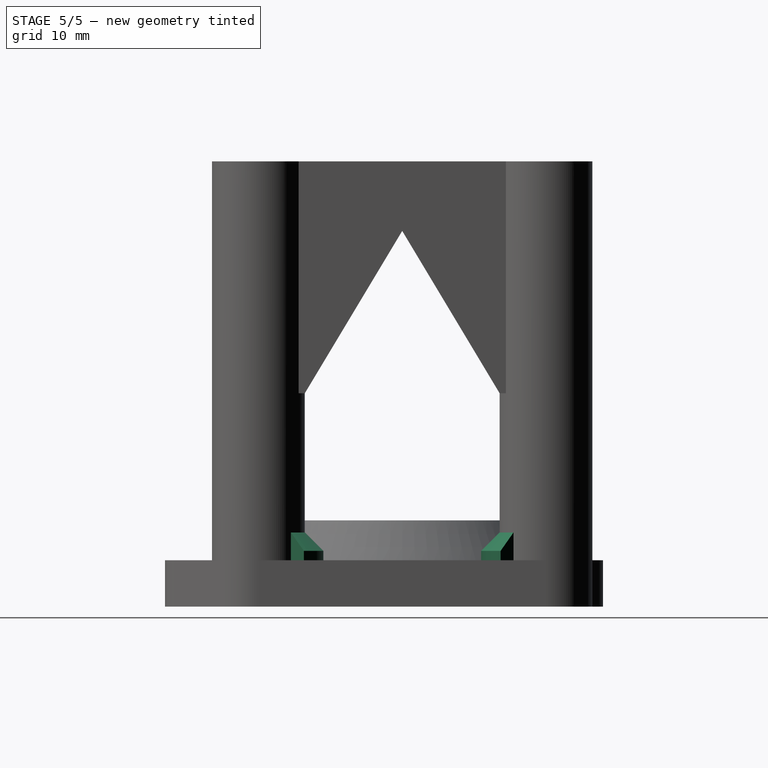
[diagram: stage 5 of 5 — right view after this stage's code; geometry added in this stage tinted green]
FEATURE [Sketcher::SketchObject] Sketch011
  ExternalGeometry = -> [Chamfer]
  MapMode = 5
  Placement = pos=(0,0,5) rot=(0,0,1;0rad)
  Support = -> [Chamfer]
  sketch-geometry (3):
    g0: Circle CenterX=0 CenterY=17.575 CenterZ=0 NormalX=0 NormalY=0 NormalZ=1 AngleXU=0 Radius=3
    g1: Circle CenterX=-10.0393 CenterY=-21.5 CenterZ=0 NormalX=0 NormalY=0 NormalZ=1 AngleXU=0 Radius=3
    g2: Circle CenterX=10.0393 CenterY=-21.5 CenterZ=0 NormalX=0 NormalY=0 NormalZ=1 AngleXU=0 Radius=3
  constraints (6):
    c: Coincident(g0,g-3)
    c: Coincident(g1,g-4)
    c: Coincident(g2,g-5)
    c: Radius(g1) = 3
    c: Equal(g1,g2)
    c: Equal(g1,g0)
FEATURE [PartDesign::Pocket] Pocket005  label="Vertiefung Befestigungsschrauben"
  Length = 2
  Length2 = 100
  Profile = -> Sketch011
  Type = 0
FEATURE [Sketcher::SketchObject] Sketch012
  ExternalGeometry = -> [Pocket005]
  MapMode = 5
  Placement = pos=(0,0,5) rot=(0,0,1;0rad)
  Support = -> [Pocket005]
  sketch-geometry (16):
    g0: ArcOfCircle CenterX=-15.5 CenterY=15.5 CenterZ=0 NormalX=0 NormalY=0 NormalZ=1 AngleXU=0 Radius=5 StartAngle=3.91679 EndAngle=7.07879
    g1: ArcOfCircle CenterX=-15.5 CenterY=15.5 CenterZ=0 NormalX=0 NormalY=0 NormalZ=1 AngleXU=0 Radius=7 StartAngle=3.91679 EndAngle=7.07879
    g2: LineSegment StartX=-12.0007 StartY=19.0714 StartZ=0 EndX=-10.601 EndY=20.5 EndZ=0
    g3: LineSegment StartX=-19.0714 StartY=12.0007 StartZ=0 EndX=-20.5 EndY=10.601 EndZ=0
    g4: ArcOfCircle CenterX=-15.5 CenterY=-15.5 CenterZ=0 NormalX=0 NormalY=0 NormalZ=1 AngleXU=0 Radius=7 StartAngle=5.82259 EndAngle=8.64958
    g5: ArcOfCircle CenterX=-15.5 CenterY=-15.5 CenterZ=0 NormalX=0 NormalY=0 NormalZ=1 AngleXU=0 Radius=5 StartAngle=5.82259 EndAngle=8.64958
    g6: ArcOfCircle CenterX=15.5 CenterY=-15.5 CenterZ=0 NormalX=0 NormalY=0 NormalZ=1 AngleXU=0 Radius=5 StartAngle=0.775193 EndAngle=3.60219
    g7: ArcOfCircle CenterX=15.5 CenterY=-15.5 CenterZ=0 NormalX=0 NormalY=0 NormalZ=1 AngleXU=0 Radius=7 StartAngle=0.775193 EndAngle=3.60219
    g8: ArcOfCircle CenterX=15.5 CenterY=15.5 CenterZ=0 NormalX=0 NormalY=0 NormalZ=1 AngleXU=0 Radius=5 StartAngle=2.34599 EndAngle=5.50799
    g9: ArcOfCircle CenterX=15.5 CenterY=15.5 CenterZ=0 NormalX=0 NormalY=0 NormalZ=1 AngleXU=0 Radius=7 StartAngle=2.34599 EndAngle=5.50799
    g10: LineSegment StartX=-20.5 StartY=-10.601 StartZ=0 EndX=-19.0714 EndY=-12.0007 EndZ=0
    g11: LineSegment StartX=-11.0211 StartY=-17.7224 StartZ=0 EndX=-9.22948 EndY=-18.6114 EndZ=0
    g12: LineSegment StartX=11.0211 StartY=-17.7224 StartZ=0 EndX=9.22948 EndY=-18.6114 EndZ=0
    g13: LineSegment StartX=20.5 StartY=-10.601 StartZ=0 EndX=19.0714 EndY=-12.0007 EndZ=0
    g14: LineSegment StartX=19.0714 StartY=12.0007 StartZ=0 EndX=20.5 EndY=10.601 EndZ=0
    g15: LineSegment StartX=12.0007 StartY=19.0714 StartZ=0 EndX=10.601 EndY=20.5 EndZ=0
  constraints (48):
    c: Coincident(g0,g-4)
    c: Coincident(g1,g0)
    c: Coincident(g1,g2)
    c: Coincident(g0,g2)
    c: Perpendicular(g0,g2)
    c: Coincident(g1,g3)
    c: Coincident(g0,g3)
    c: Perpendicular(g0,g3)
    c: Equal(g-3,g0)
    c: Distance(g3) = 2
    c: PointOnObject(g1,g-12)
    c: PointOnObject(g1,g-9)
    c: Coincident(g4,g-8)
    c: Coincident(g5,g4)
    c: Coincident(g6,g-6)
    c: Coincident(g7,g6)
    c: Coincident(g8,g-5)
    c: Coincident(g9,g8)
    c: Coincident(g9,g15)
    c: Coincident(g8,g15)
    c: Coincident(g8,g14)
    c: Coincident(g9,g14)
    c: Coincident(g7,g13)
    c: Coincident(g6,g13)
    c: Coincident(g6,g12)
    c: Coincident(g7,g12)
    c: Coincident(g4,g10)
    c: Coincident(g5,g10)
    c: Coincident(g4,g11)
    c: Coincident(g5,g11)
    c: Perpendicular(g5,g10)
    c: Perpendicular(g4,g11)
    c: Perpendicular(g6,g12)
    c: Perpendicular(g6,g13)
    c: Perpendicular(g8,g14)
    c: Perpendicular(g8,g15)
    c: Equal(g2,g15)
    c: Equal(g15,g13)
    c: Equal(g13,g11)
    c: Equal(g5,g8)
    c: Equal(g8,g6)
    c: Equal(g6,g-6)
    c: PointOnObject(g4,g-12)
    c: PointOnObject(g4,g-14)
    c: PointOnObject(g7,g-13)
    c: PointOnObject(g7,g-11)
    c: PointOnObject(g9,g-11)
    c: PointOnObject(g9,g-10)
FEATURE [PartDesign::Pad] Pad005
  Length = 3
  Length2 = 100
  Profile = -> Sketch012
  Type = 0
FEATURE [PartDesign::Chamfer] Chamfer001
  Base = -> Pad005 [Edge198,Edge195,Edge219,Edge192]
  Size = 1.99
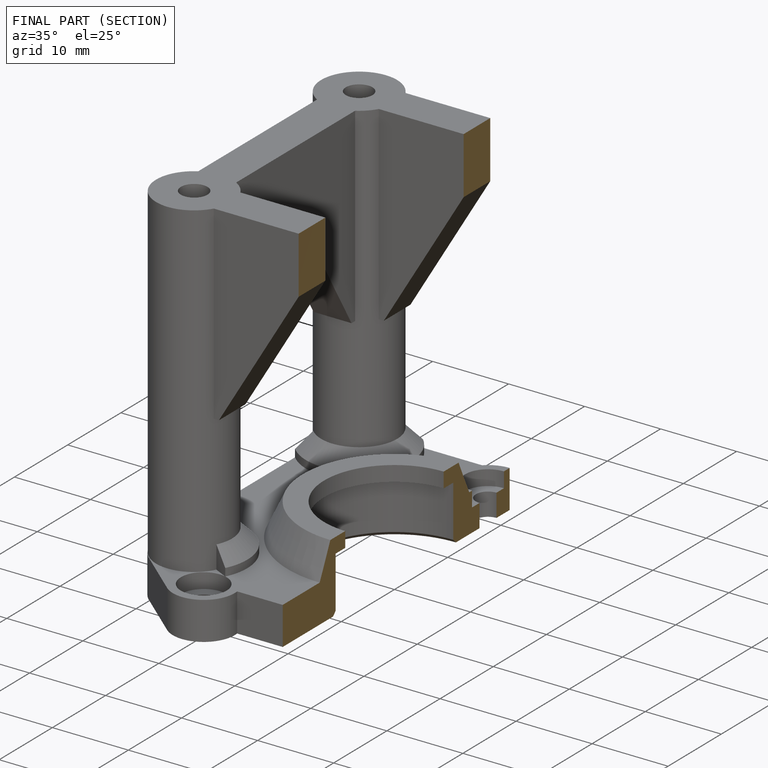
[diagram: finished part — half-section view (interior)]
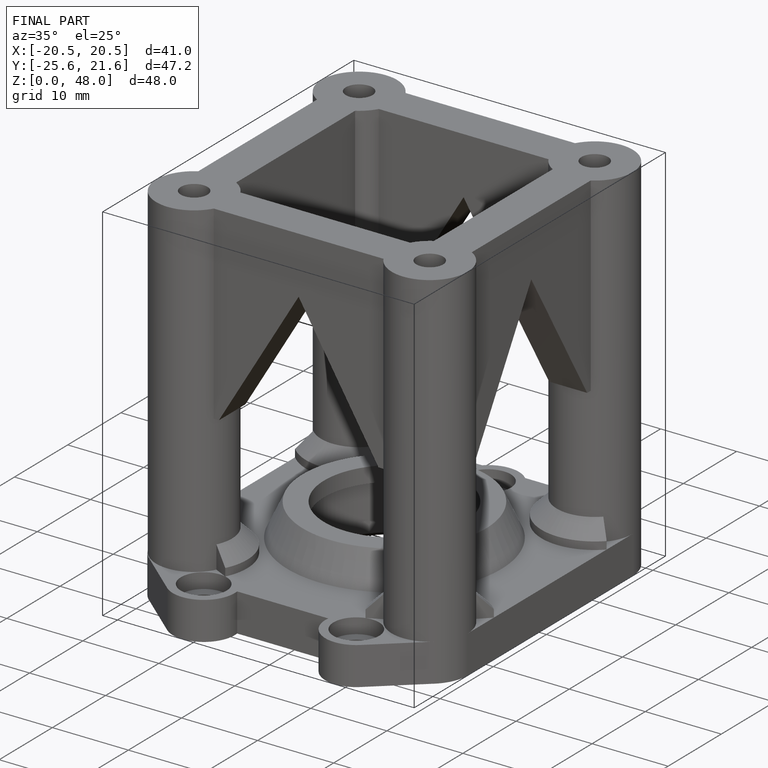
[diagram: finished part — iso view with bounding-box wireframe]
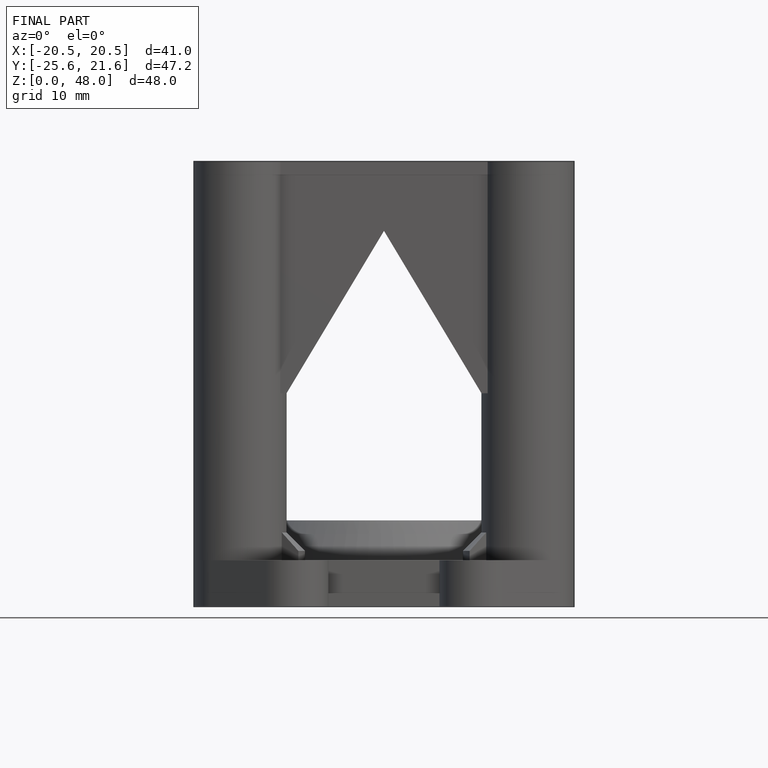
[diagram: finished part — front view with bounding-box wireframe]
